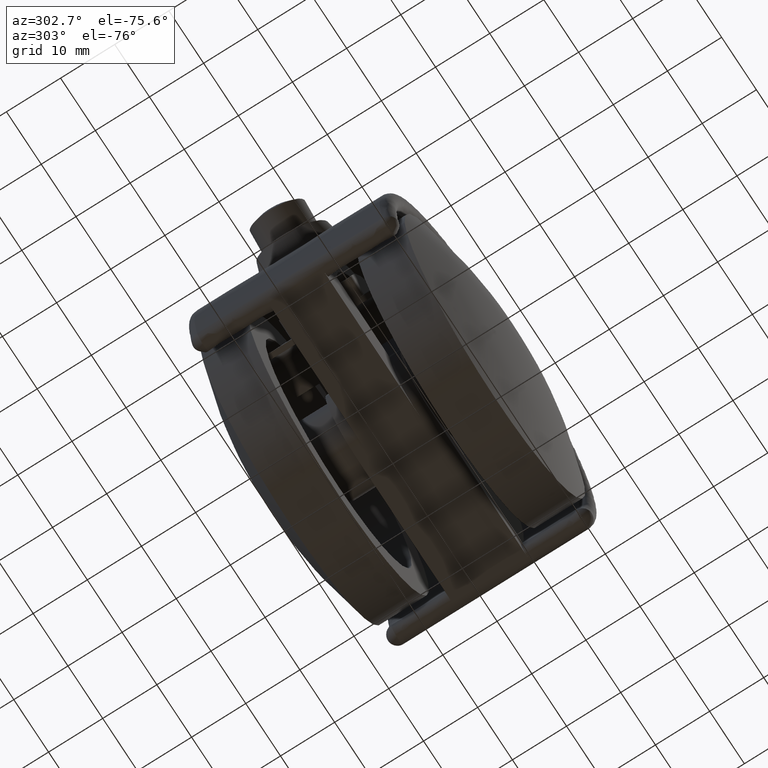
[diagram: clean part render]
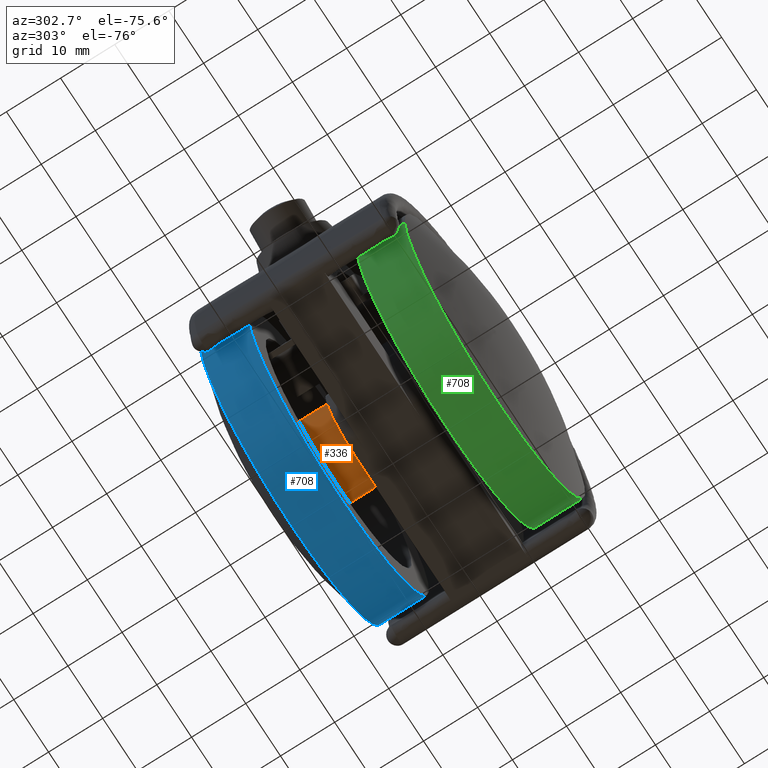
[diagram: same view with three faces highlighted in distinct colors, each labeled with its STEP entity id]
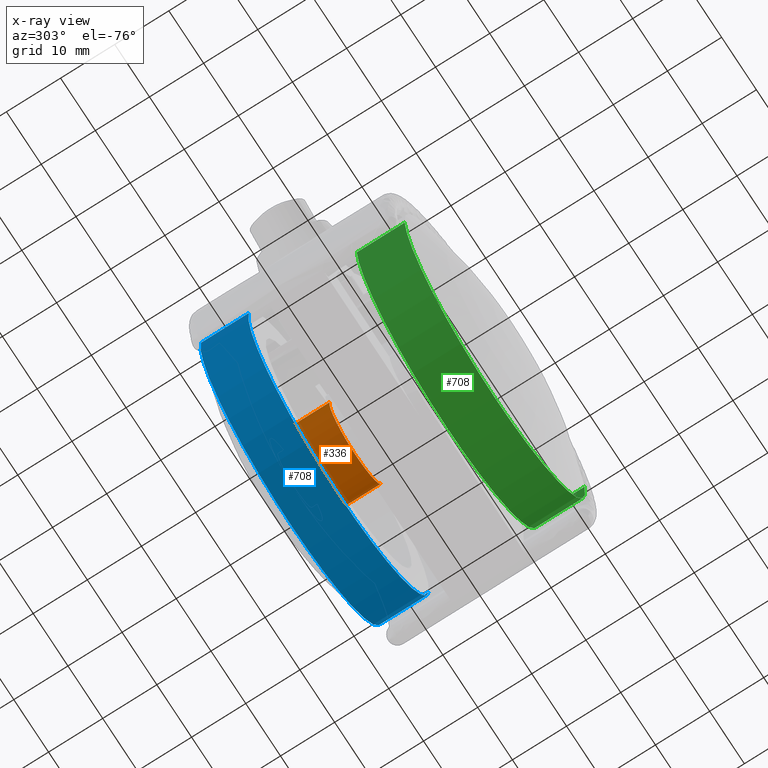
[diagram: x-ray of the same camera — body ghosted, the three highlighted faces saturated]
A machine part, auxiliary view with three faces highlighted in distinct colors.
The next image is the same camera in x-ray (body ghosted, the three faces saturated) — at least one of them is partly hidden behind the body in this view.
Their STEP definitions:

[orange] entity #336 — the highlighted face is a freeform B-spline surface patch.
#234=CARTESIAN_POINT('',(7.447571447727496,-18.143271586682147,0.885256759925689));
#235=CARTESIAN_POINT('',(7.472907115864541,-18.143271586682140,0.672110464784833));
#236=CARTESIAN_POINT('',(7.486010988164000,-18.143271586682140,0.457864046511427));
#237=CARTESIAN_POINT('',(7.943875034675429,-18.143271586682150,-7.028146941652573));
#238=CARTESIAN_POINT('',(0.457864046511427,-18.143271586682140,-7.486010988164000));
#239=CARTESIAN_POINT('',(-7.028146941652573,-18.143271586682150,-7.943875034675429));
#240=CARTESIAN_POINT('',(-7.486010988164000,-18.143271586682140,-0.457864046511427));
#241=CARTESIAN_POINT('',(7.447571447727496,-6.618918210332945,0.885256759925689));
#242=CARTESIAN_POINT('',(7.472907115864541,-6.618918210332945,0.672110464784833));
#243=CARTESIAN_POINT('',(7.486010988164000,-6.618918210332945,0.457864046511427));
#244=CARTESIAN_POINT('',(7.943875034675429,-6.618918210332945,-7.028146941652573));
#245=CARTESIAN_POINT('',(0.457864046511427,-6.618918210332945,-7.486010988164000));
#246=CARTESIAN_POINT('',(-7.028146941652573,-6.618918210332945,-7.943875034675429));
#247=CARTESIAN_POINT('',(-7.486010988164000,-6.618918210332945,-0.457864046511427));
#255=(BOUNDED_SURFACE()B_SPLINE_SURFACE(2,1,((#234,#241),(#235,#242),(#236,#243),(#237,#244),(#238,#245),(#239,#246),(#240,#247)),.UNSPECIFIED.,.F.,.F.,.U.)B_SPLINE_SURFACE_WITH_KNOTS((3,2,2,3),(2,2),(0.0,0.497056274847715,12.923463146040559,25.349870017233410),(0.0,11.524353376349200),.UNSPECIFIED.)GEOMETRIC_REPRESENTATION_ITEM()RATIONAL_B_SPLINE_SURFACE(((0.977505800795127,0.977505800795127),(0.988284271247462,0.988284271247462),(1.0,1.0),(0.707106781186548,0.707106781186548),(1.0,1.0),(0.707106781186548,0.707106781186548),(1.0,1.0)))REPRESENTATION_ITEM('')SURFACE());
#256=CARTESIAN_POINT('',(7.447571447717403,-17.869045450421599,0.885256760010619));
#257=VERTEX_POINT('',#256);
#258=CARTESIAN_POINT('',(0.0,-17.869045450421599,-7.500000000000000));
#259=VERTEX_POINT('',#258);
#260=CARTESIAN_POINT('',(7.447571447717403,-17.869045450421602,0.885256760010619));
#261=CARTESIAN_POINT('',(7.500000000000000,-17.869045450421602,0.444180897475153));
#262=CARTESIAN_POINT('',(7.500000000000000,-17.869045450421599,0.0));
#263=CARTESIAN_POINT('',(7.500000000000000,-17.869045450421602,-7.500000000000000));
#264=CARTESIAN_POINT('',(0.0,-17.869045450421599,-7.500000000000000));
#272=(BOUNDED_CURVE()B_SPLINE_CURVE(2,(#260,#261,#262,#263,#264),.UNSPECIFIED.,.F.,.U.)B_SPLINE_CURVE_WITH_KNOTS((3,2,3),(0.229562473511790,0.250000000000000,0.500000000000000),.UNSPECIFIED.)CURVE()GEOMETRIC_REPRESENTATION_ITEM()RATIONAL_B_SPLINE_CURVE((0.956026754180331,0.976055948329132,1.0,0.707106781186547,1.0))REPRESENTATION_ITEM(''));
#273=EDGE_CURVE('',#257,#259,#272,.T.);
#274=ORIENTED_EDGE('',*,*,#273,.T.);
#275=CARTESIAN_POINT('',(-7.486011044637598,-17.869045450421599,-0.457863123174404));
#276=VERTEX_POINT('',#275);
#277=CARTESIAN_POINT('',(0.0,-17.869045450421599,-7.500000000000000));
#278=CARTESIAN_POINT('',(-7.055297245468959,-17.869045450421595,-7.500000000000001));
#279=CARTESIAN_POINT('',(-7.486011044637598,-17.869045450421599,-0.457863123174405));
#287=(BOUNDED_CURVE()B_SPLINE_CURVE(2,(#277,#278,#279),.UNSPECIFIED.,.F.,.U.)B_SPLINE_CURVE_WITH_KNOTS((3,3),(0.500000000000000,0.739333004806386),.UNSPECIFIED.)CURVE()GEOMETRIC_REPRESENTATION_ITEM()RATIONAL_B_SPLINE_CURVE((1.0,0.719603943415849,0.976072132896868))REPRESENTATION_ITEM(''));
#288=EDGE_CURVE('',#259,#276,#287,.T.);
#289=ORIENTED_EDGE('',*,*,#288,.T.);
#290=CARTESIAN_POINT('',(-7.486011043958739,-6.899999999999998,-0.457863134273688));
#291=VERTEX_POINT('',#290);
#292=CARTESIAN_POINT('',(-7.486011044637598,-17.869045450421599,-0.457863123174404));
#293=CARTESIAN_POINT('',(-7.486011043958739,-6.899999999999998,-0.457863134273688));
#294=QUASI_UNIFORM_CURVE('',1,(#292,#293),.UNSPECIFIED.,.F.,.U.);
#295=EDGE_CURVE('',#276,#291,#294,.T.);
#296=ORIENTED_EDGE('',*,*,#295,.T.);
#297=CARTESIAN_POINT('',(0.0,-6.900000000000000,-7.500000000000000));
#298=VERTEX_POINT('',#297);
#299=CARTESIAN_POINT('',(0.0,-6.900000000000000,-7.500000000000000));
#300=CARTESIAN_POINT('',(-7.055297224508431,-6.900000000000000,-7.499999999999999));
#301=CARTESIAN_POINT('',(-7.486011043958739,-6.899999999999999,-0.457863134273688));
#309=(BOUNDED_CURVE()B_SPLINE_CURVE(2,(#299,#300,#301),.UNSPECIFIED.,.F.,.U.)B_SPLINE_CURVE_WITH_KNOTS((3,3),(0.500000000000000,0.739333004294724),.UNSPECIFIED.)CURVE()GEOMETRIC_REPRESENTATION_ITEM()RATIONAL_B_SPLINE_CURVE((1.0,0.719603944015298,0.976072131800279))REPRESENTATION_ITEM(''));
#310=EDGE_CURVE('',#298,#291,#309,.T.);
#311=ORIENTED_EDGE('',*,*,#310,.F.);
#312=CARTESIAN_POINT('',(7.447571447717403,-6.900000000000000,0.885256760010619));
#313=VERTEX_POINT('',#312);
#314=CARTESIAN_POINT('',(7.447571447717403,-6.900000000000000,0.885256760010619));
#315=CARTESIAN_POINT('',(7.500000000000000,-6.900000000000000,0.444180897475153));
#316=CARTESIAN_POINT('',(7.500000000000000,-6.900000000000000,0.0));
#317=CARTESIAN_POINT('',(7.500000000000000,-6.900000000000000,-7.500000000000000));
#318=CARTESIAN_POINT('',(0.0,-6.900000000000000,-7.500000000000000));
#326=(BOUNDED_CURVE()B_SPLINE_CURVE(2,(#314,#315,#316,#317,#318),.UNSPECIFIED.,.F.,.U.)B_SPLINE_CURVE_WITH_KNOTS((3,2,3),(0.229562473511790,0.250000000000000,0.500000000000000),.UNSPECIFIED.)CURVE()GEOMETRIC_REPRESENTATION_ITEM()RATIONAL_B_SPLINE_CURVE((0.956026754180331,0.976055948329132,1.0,0.707106781186547,1.0))REPRESENTATION_ITEM(''));
#327=EDGE_CURVE('',#313,#298,#326,.T.);
#328=ORIENTED_EDGE('',*,*,#327,.F.);
#329=CARTESIAN_POINT('',(7.447571447717403,-17.869045450421599,0.885256760010619));
#330=CARTESIAN_POINT('',(7.447571447717403,-6.900000000000000,0.885256760010619));
#331=QUASI_UNIFORM_CURVE('',1,(#329,#330),.UNSPECIFIED.,.F.,.U.);
#332=EDGE_CURVE('',#257,#313,#331,.T.);
#333=ORIENTED_EDGE('',*,*,#332,.F.);
#334=EDGE_LOOP('',(#274,#289,#296,#311,#328,#333));
#335=FACE_OUTER_BOUND('',#334,.T.);
#336=ADVANCED_FACE('',(#335),#255,.T.);

[blue] entity #708 — the highlighted face is a freeform B-spline surface patch.
#606=CARTESIAN_POINT('',(25.818247685455319,-19.071250010989285,3.068890101075720));
#607=CARTESIAN_POINT('',(25.906078001663747,-19.071250010989292,2.329982944587419));
#608=CARTESIAN_POINT('',(25.951504758968529,-19.071250010989289,1.587262027906282));
#609=CARTESIAN_POINT('',(27.538766786874810,-19.071250010989282,-24.364242731062255));
#610=CARTESIAN_POINT('',(1.587262027906282,-19.071250010989289,-25.951504758968529));
#611=CARTESIAN_POINT('',(-24.364242731062255,-19.071250010989282,-27.538766786874810));
#612=CARTESIAN_POINT('',(-25.951504758968529,-19.071250010989289,-1.587262027906282));
#613=CARTESIAN_POINT('',(25.818247685455319,-9.773218749725269,3.068890101075720));
#614=CARTESIAN_POINT('',(25.906078001663747,-9.773218749725269,2.329982944587419));
#615=CARTESIAN_POINT('',(25.951504758968529,-9.773218749725267,1.587262027906282));
#616=CARTESIAN_POINT('',(27.538766786874810,-9.773218749725267,-24.364242731062255));
#617=CARTESIAN_POINT('',(1.587262027906282,-9.773218749725267,-25.951504758968529));
#618=CARTESIAN_POINT('',(-24.364242731062255,-9.773218749725267,-27.538766786874810));
#619=CARTESIAN_POINT('',(-25.951504758968529,-9.773218749725267,-1.587262027906282));
#627=(BOUNDED_SURFACE()B_SPLINE_SURFACE(2,1,((#606,#613),(#607,#614),(#608,#615),(#609,#616),(#610,#617),(#611,#618),(#612,#619)),.UNSPECIFIED.,.F.,.F.,.U.)B_SPLINE_SURFACE_WITH_KNOTS((3,2,2,3),(2,2),(0.0,1.723128419472078,44.801338906273962,87.879549393075834),(0.0,9.298031261264020),.UNSPECIFIED.)GEOMETRIC_REPRESENTATION_ITEM()RATIONAL_B_SPLINE_SURFACE(((0.977505800795127,0.977505800795127),(0.988284271247462,0.988284271247462),(1.0,1.0),(0.707106781186548,0.707106781186548),(1.0,1.0),(0.707106781186548,0.707106781186548),(1.0,1.0)))REPRESENTATION_ITEM('')SURFACE());
#628=CARTESIAN_POINT('',(25.818248836254870,-9.999999999999922,3.068880419489900));
#629=VERTEX_POINT('',#628);
#630=CARTESIAN_POINT('',(0.0,-10.0,-26.0));
#631=VERTEX_POINT('',#630);
#632=CARTESIAN_POINT('',(25.818248836254877,-9.999999999999922,3.068880419489899));
#633=CARTESIAN_POINT('',(25.999999999999993,-10.0,1.539822218980781));
#634=CARTESIAN_POINT('',(26.0,-10.0,0.0));
#635=CARTESIAN_POINT('',(26.000000000000007,-10.0,-26.000000000000007));
#636=CARTESIAN_POINT('',(0.0,-10.0,-26.0));
#644=(BOUNDED_CURVE()B_SPLINE_CURVE(2,(#632,#633,#634,#635,#636),.UNSPECIFIED.,.F.,.U.)B_SPLINE_CURVE_WITH_KNOTS((3,2,3),(0.229562536890182,0.250000000000000,0.500000000000000),.UNSPECIFIED.)CURVE()GEOMETRIC_REPRESENTATION_ITEM()RATIONAL_B_SPLINE_CURVE((0.956026878404610,0.976056022581536,1.0,0.707106781186547,1.0))REPRESENTATION_ITEM(''));
#645=EDGE_CURVE('',#629,#631,#644,.T.);
#646=ORIENTED_EDGE('',*,*,#645,.F.);
#647=CARTESIAN_POINT('',(25.818248822043071,-18.850000010721249,3.068880539053032));
#648=VERTEX_POINT('',#647);
#649=CARTESIAN_POINT('',(25.818248822043071,-18.850000010721249,3.068880539053032));
#650=CARTESIAN_POINT('',(25.818248836254870,-9.999999999999922,3.068880419489900));
#651=QUASI_UNIFORM_CURVE('',1,(#649,#650),.UNSPECIFIED.,.F.,.U.);
#652=EDGE_CURVE('',#648,#629,#651,.T.);
#653=ORIENTED_EDGE('',*,*,#652,.F.);
#654=CARTESIAN_POINT('',(0.0,-18.850000010721249,-26.0));
#655=VERTEX_POINT('',#654);
#656=CARTESIAN_POINT('',(25.818248822043074,-18.850000010721249,3.068880539053032));
#657=CARTESIAN_POINT('',(26.0,-18.850000010721246,1.539822279394345));
#658=CARTESIAN_POINT('',(26.0,-18.850000010721249,0.0));
#659=CARTESIAN_POINT('',(26.000000000000007,-18.850000010721253,-26.000000000000007));
#660=CARTESIAN_POINT('',(0.0,-18.850000010721249,-26.0));
#668=(BOUNDED_CURVE()B_SPLINE_CURVE(2,(#656,#657,#658,#659,#660),.UNSPECIFIED.,.F.,.U.)B_SPLINE_CURVE_WITH_KNOTS((3,2,3),(0.229562536107535,0.250000000000000,0.500000000000000),.UNSPECIFIED.)CURVE()GEOMETRIC_REPRESENTATION_ITEM()RATIONAL_B_SPLINE_CURVE((0.956026876870590,0.976056021664609,1.0,0.707106781186547,1.0))REPRESENTATION_ITEM(''));
#669=EDGE_CURVE('',#648,#655,#668,.T.);
#670=ORIENTED_EDGE('',*,*,#669,.T.);
#671=CARTESIAN_POINT('',(-25.951506237376812,-18.850000010721249,-1.587237855775190));
#672=VERTEX_POINT('',#671);
#673=CARTESIAN_POINT('',(0.0,-18.850000010721249,-26.0));
#674=CARTESIAN_POINT('',(-24.458380563490213,-18.850000010721253,-26.000000000000004));
#675=CARTESIAN_POINT('',(-25.951506237376812,-18.850000010721256,-1.587237855775190));
#683=(BOUNDED_CURVE()B_SPLINE_CURVE(2,(#673,#674,#675),.UNSPECIFIED.,.F.,.U.)B_SPLINE_CURVE_WITH_KNOTS((3,3),(0.500000000000000,0.739333122958049),.UNSPECIFIED.)CURVE()GEOMETRIC_REPRESENTATION_ITEM()RATIONAL_B_SPLINE_CURVE((1.0,0.719603804992565,0.976072386118597))REPRESENTATION_ITEM(''));
#684=EDGE_CURVE('',#655,#672,#683,.T.);
#685=ORIENTED_EDGE('',*,*,#684,.T.);
#686=CARTESIAN_POINT('',(-25.951506255837991,-10.000000000000179,-1.587237553928227));
#687=VERTEX_POINT('',#686);
#688=CARTESIAN_POINT('',(-25.951506237376812,-18.850000010721249,-1.587237855775190));
#689=CARTESIAN_POINT('',(-25.951506255837991,-10.000000000000179,-1.587237553928227));
#690=QUASI_UNIFORM_CURVE('',1,(#688,#689),.UNSPECIFIED.,.F.,.U.);
#691=EDGE_CURVE('',#672,#687,#690,.T.);
#692=ORIENTED_EDGE('',*,*,#691,.T.);
#693=CARTESIAN_POINT('',(0.0,-10.0,-26.0));
#694=CARTESIAN_POINT('',(-24.458380848501903,-10.0,-25.999999999999996));
#695=CARTESIAN_POINT('',(-25.951506255837995,-10.000000000000181,-1.587237553928227));
#703=(BOUNDED_CURVE()B_SPLINE_CURVE(2,(#693,#694,#695),.UNSPECIFIED.,.F.,.U.)B_SPLINE_CURVE_WITH_KNOTS((3,3),(0.500000000000000,0.739333124964974),.UNSPECIFIED.)CURVE()GEOMETRIC_REPRESENTATION_ITEM()RATIONAL_B_SPLINE_CURVE((1.0,0.719603802641306,0.976072390419827))REPRESENTATION_ITEM(''));
#704=EDGE_CURVE('',#631,#687,#703,.T.);
#705=ORIENTED_EDGE('',*,*,#704,.F.);
#706=EDGE_LOOP('',(#646,#653,#670,#685,#692,#705));
#707=FACE_OUTER_BOUND('',#706,.T.);
#708=ADVANCED_FACE('',(#707),#627,.T.);

[green] entity #708 — the highlighted face is a freeform B-spline surface patch.
#606=CARTESIAN_POINT('',(25.818247685455319,-19.071250010989285,3.068890101075720));
#607=CARTESIAN_POINT('',(25.906078001663747,-19.071250010989292,2.329982944587419));
#608=CARTESIAN_POINT('',(25.951504758968529,-19.071250010989289,1.587262027906282));
#609=CARTESIAN_POINT('',(27.538766786874810,-19.071250010989282,-24.364242731062255));
#610=CARTESIAN_POINT('',(1.587262027906282,-19.071250010989289,-25.951504758968529));
#611=CARTESIAN_POINT('',(-24.364242731062255,-19.071250010989282,-27.538766786874810));
#612=CARTESIAN_POINT('',(-25.951504758968529,-19.071250010989289,-1.587262027906282));
#613=CARTESIAN_POINT('',(25.818247685455319,-9.773218749725269,3.068890101075720));
#614=CARTESIAN_POINT('',(25.906078001663747,-9.773218749725269,2.329982944587419));
#615=CARTESIAN_POINT('',(25.951504758968529,-9.773218749725267,1.587262027906282));
#616=CARTESIAN_POINT('',(27.538766786874810,-9.773218749725267,-24.364242731062255));
#617=CARTESIAN_POINT('',(1.587262027906282,-9.773218749725267,-25.951504758968529));
#618=CARTESIAN_POINT('',(-24.364242731062255,-9.773218749725267,-27.538766786874810));
#619=CARTESIAN_POINT('',(-25.951504758968529,-9.773218749725267,-1.587262027906282));
#627=(BOUNDED_SURFACE()B_SPLINE_SURFACE(2,1,((#606,#613),(#607,#614),(#608,#615),(#609,#616),(#610,#617),(#611,#618),(#612,#619)),.UNSPECIFIED.,.F.,.F.,.U.)B_SPLINE_SURFACE_WITH_KNOTS((3,2,2,3),(2,2),(0.0,1.723128419472078,44.801338906273962,87.879549393075834),(0.0,9.298031261264020),.UNSPECIFIED.)GEOMETRIC_REPRESENTATION_ITEM()RATIONAL_B_SPLINE_SURFACE(((0.977505800795127,0.977505800795127),(0.988284271247462,0.988284271247462),(1.0,1.0),(0.707106781186548,0.707106781186548),(1.0,1.0),(0.707106781186548,0.707106781186548),(1.0,1.0)))REPRESENTATION_ITEM('')SURFACE());
#628=CARTESIAN_POINT('',(25.818248836254870,-9.999999999999922,3.068880419489900));
#629=VERTEX_POINT('',#628);
#630=CARTESIAN_POINT('',(0.0,-10.0,-26.0));
#631=VERTEX_POINT('',#630);
#632=CARTESIAN_POINT('',(25.818248836254877,-9.999999999999922,3.068880419489899));
#633=CARTESIAN_POINT('',(25.999999999999993,-10.0,1.539822218980781));
#634=CARTESIAN_POINT('',(26.0,-10.0,0.0));
#635=CARTESIAN_POINT('',(26.000000000000007,-10.0,-26.000000000000007));
#636=CARTESIAN_POINT('',(0.0,-10.0,-26.0));
#644=(BOUNDED_CURVE()B_SPLINE_CURVE(2,(#632,#633,#634,#635,#636),.UNSPECIFIED.,.F.,.U.)B_SPLINE_CURVE_WITH_KNOTS((3,2,3),(0.229562536890182,0.250000000000000,0.500000000000000),.UNSPECIFIED.)CURVE()GEOMETRIC_REPRESENTATION_ITEM()RATIONAL_B_SPLINE_CURVE((0.956026878404610,0.976056022581536,1.0,0.707106781186547,1.0))REPRESENTATION_ITEM(''));
#645=EDGE_CURVE('',#629,#631,#644,.T.);
#646=ORIENTED_EDGE('',*,*,#645,.F.);
#647=CARTESIAN_POINT('',(25.818248822043071,-18.850000010721249,3.068880539053032));
#648=VERTEX_POINT('',#647);
#649=CARTESIAN_POINT('',(25.818248822043071,-18.850000010721249,3.068880539053032));
#650=CARTESIAN_POINT('',(25.818248836254870,-9.999999999999922,3.068880419489900));
#651=QUASI_UNIFORM_CURVE('',1,(#649,#650),.UNSPECIFIED.,.F.,.U.);
#652=EDGE_CURVE('',#648,#629,#651,.T.);
#653=ORIENTED_EDGE('',*,*,#652,.F.);
#654=CARTESIAN_POINT('',(0.0,-18.850000010721249,-26.0));
#655=VERTEX_POINT('',#654);
#656=CARTESIAN_POINT('',(25.818248822043074,-18.850000010721249,3.068880539053032));
#657=CARTESIAN_POINT('',(26.0,-18.850000010721246,1.539822279394345));
#658=CARTESIAN_POINT('',(26.0,-18.850000010721249,0.0));
#659=CARTESIAN_POINT('',(26.000000000000007,-18.850000010721253,-26.000000000000007));
#660=CARTESIAN_POINT('',(0.0,-18.850000010721249,-26.0));
#668=(BOUNDED_CURVE()B_SPLINE_CURVE(2,(#656,#657,#658,#659,#660),.UNSPECIFIED.,.F.,.U.)B_SPLINE_CURVE_WITH_KNOTS((3,2,3),(0.229562536107535,0.250000000000000,0.500000000000000),.UNSPECIFIED.)CURVE()GEOMETRIC_REPRESENTATION_ITEM()RATIONAL_B_SPLINE_CURVE((0.956026876870590,0.976056021664609,1.0,0.707106781186547,1.0))REPRESENTATION_ITEM(''));
#669=EDGE_CURVE('',#648,#655,#668,.T.);
#670=ORIENTED_EDGE('',*,*,#669,.T.);
#671=CARTESIAN_POINT('',(-25.951506237376812,-18.850000010721249,-1.587237855775190));
#672=VERTEX_POINT('',#671);
#673=CARTESIAN_POINT('',(0.0,-18.850000010721249,-26.0));
#674=CARTESIAN_POINT('',(-24.458380563490213,-18.850000010721253,-26.000000000000004));
#675=CARTESIAN_POINT('',(-25.951506237376812,-18.850000010721256,-1.587237855775190));
#683=(BOUNDED_CURVE()B_SPLINE_CURVE(2,(#673,#674,#675),.UNSPECIFIED.,.F.,.U.)B_SPLINE_CURVE_WITH_KNOTS((3,3),(0.500000000000000,0.739333122958049),.UNSPECIFIED.)CURVE()GEOMETRIC_REPRESENTATION_ITEM()RATIONAL_B_SPLINE_CURVE((1.0,0.719603804992565,0.976072386118597))REPRESENTATION_ITEM(''));
#684=EDGE_CURVE('',#655,#672,#683,.T.);
#685=ORIENTED_EDGE('',*,*,#684,.T.);
#686=CARTESIAN_POINT('',(-25.951506255837991,-10.000000000000179,-1.587237553928227));
#687=VERTEX_POINT('',#686);
#688=CARTESIAN_POINT('',(-25.951506237376812,-18.850000010721249,-1.587237855775190));
#689=CARTESIAN_POINT('',(-25.951506255837991,-10.000000000000179,-1.587237553928227));
#690=QUASI_UNIFORM_CURVE('',1,(#688,#689),.UNSPECIFIED.,.F.,.U.);
#691=EDGE_CURVE('',#672,#687,#690,.T.);
#692=ORIENTED_EDGE('',*,*,#691,.T.);
#693=CARTESIAN_POINT('',(0.0,-10.0,-26.0));
#694=CARTESIAN_POINT('',(-24.458380848501903,-10.0,-25.999999999999996));
#695=CARTESIAN_POINT('',(-25.951506255837995,-10.000000000000181,-1.587237553928227));
#703=(BOUNDED_CURVE()B_SPLINE_CURVE(2,(#693,#694,#695),.UNSPECIFIED.,.F.,.U.)B_SPLINE_CURVE_WITH_KNOTS((3,3),(0.500000000000000,0.739333124964974),.UNSPECIFIED.)CURVE()GEOMETRIC_REPRESENTATION_ITEM()RATIONAL_B_SPLINE_CURVE((1.0,0.719603802641306,0.976072390419827))REPRESENTATION_ITEM(''));
#704=EDGE_CURVE('',#631,#687,#703,.T.);
#705=ORIENTED_EDGE('',*,*,#704,.F.);
#706=EDGE_LOOP('',(#646,#653,#670,#685,#692,#705));
#707=FACE_OUTER_BOUND('',#706,.T.);
#708=ADVANCED_FACE('',(#707),#627,.T.);